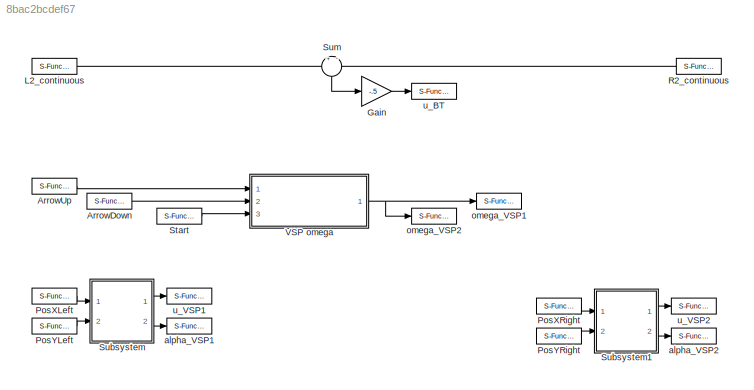
MODEL slx_8bac2bcdef67
KIND model
CONFIG AbsTol = auto
CONFIG EnableMultiTasking = on
CONFIG FixedStep = 0.01
CONFIG MaxStep = auto
CONFIG MinStep = auto
CONFIG RelTol = 1e-3
CONFIG SampleTimeConstraint = Unconstrained
CONFIG Solver = FixedStepDiscrete
CONFIG SolverName = FixedStepDiscrete
CONFIG StartTime = 0.0
CONFIG StopTime = inf
BLOCK [S-Function] ArrowDown
  CopyFcn = NIVeriStand_MDL_functions('', 'IO_copy');
  DeleteFcn = NIVeriStand_MDL_functions('', 'IO_delete');
  EnableBusSupport = off
  FunctionName = NIVeriStandIO
  MoveFcn = set_param(gcb, 'Mask', 'on');
  Parameters = width dtype portnum stime stype btype
  Ports = [0, 1]
  Priority = 6
  SFcnIsStateOwnerBlock = off
  SFunctionDeploymentMode = off
BLOCK [S-Function] ArrowUp
  CopyFcn = NIVeriStand_MDL_functions('', 'IO_copy');
  DeleteFcn = NIVeriStand_MDL_functions('', 'IO_delete');
  EnableBusSupport = off
  FunctionName = NIVeriStandIO
  MoveFcn = set_param(gcb, 'Mask', 'on');
  Parameters = width dtype portnum stime stype btype
  Ports = [0, 1]
  Priority = 5
  SFcnIsStateOwnerBlock = off
  SFunctionDeploymentMode = off
BLOCK [Gain] Gain
  Gain = -.5
  OutDataTypeStr = Inherit: Inherit via internal rule
  ParamDataTypeStr = Inherit: Inherit via internal rule
  SaturateOnIntegerOverflow = off
BLOCK [S-Function] L2_continuous
  CopyFcn = NIVeriStand_MDL_functions('', 'IO_copy');
  DeleteFcn = NIVeriStand_MDL_functions('', 'IO_delete');
  EnableBusSupport = off
  FunctionName = NIVeriStandIO
  MoveFcn = set_param(gcb, 'Mask', 'on');
  Parameters = width dtype portnum stime stype btype
  Ports = [0, 1]
  Priority = 8
  SFcnIsStateOwnerBlock = off
  SFunctionDeploymentMode = off
BLOCK [S-Function] PosXLeft
  CopyFcn = NIVeriStand_MDL_functions('', 'IO_copy');
  DeleteFcn = NIVeriStand_MDL_functions('', 'IO_delete');
  EnableBusSupport = off
  FunctionName = NIVeriStandIO
  MoveFcn = set_param(gcb, 'Mask', 'on');
  Parameters = width dtype portnum stime stype btype
  Ports = [0, 1]
  Priority = 1
  SFcnIsStateOwnerBlock = off
  SFunctionDeploymentMode = off
BLOCK [S-Function] PosXRight
  CopyFcn = NIVeriStand_MDL_functions('', 'IO_copy');
  DeleteFcn = NIVeriStand_MDL_functions('', 'IO_delete');
  EnableBusSupport = off
  FunctionName = NIVeriStandIO
  MoveFcn = set_param(gcb, 'Mask', 'on');
  Parameters = width dtype portnum stime stype btype
  Ports = [0, 1]
  Priority = 3
  SFcnIsStateOwnerBlock = off
  SFunctionDeploymentMode = off
BLOCK [S-Function] PosYLeft
  CopyFcn = NIVeriStand_MDL_functions('', 'IO_copy');
  DeleteFcn = NIVeriStand_MDL_functions('', 'IO_delete');
  EnableBusSupport = off
  FunctionName = NIVeriStandIO
  MoveFcn = set_param(gcb, 'Mask', 'on');
  Parameters = width dtype portnum stime stype btype
  Ports = [0, 1]
  Priority = 2
  SFcnIsStateOwnerBlock = off
  SFunctionDeploymentMode = off
BLOCK [S-Function] PosYRight
  CopyFcn = NIVeriStand_MDL_functions('', 'IO_copy');
  DeleteFcn = NIVeriStand_MDL_functions('', 'IO_delete');
  EnableBusSupport = off
  FunctionName = NIVeriStandIO
  MoveFcn = set_param(gcb, 'Mask', 'on');
  Parameters = width dtype portnum stime stype btype
  Ports = [0, 1]
  Priority = 7
  SFcnIsStateOwnerBlock = off
  SFunctionDeploymentMode = off
BLOCK [S-Function] R2_continuous
  CopyFcn = NIVeriStand_MDL_functions('', 'IO_copy');
  DeleteFcn = NIVeriStand_MDL_functions('', 'IO_delete');
  EnableBusSupport = off
  FunctionName = NIVeriStandIO
  MoveFcn = set_param(gcb, 'Mask', 'on');
  Parameters = width dtype portnum stime stype btype
  Ports = [0, 1]
  Priority = 9
  SFcnIsStateOwnerBlock = off
  SFunctionDeploymentMode = off
BLOCK [S-Function] Start
  CopyFcn = NIVeriStand_MDL_functions('', 'IO_copy');
  DeleteFcn = NIVeriStand_MDL_functions('', 'IO_delete');
  EnableBusSupport = off
  FunctionName = NIVeriStandIO
  MoveFcn = set_param(gcb, 'Mask', 'on');
  Parameters = width dtype portnum stime stype btype
  Ports = [0, 1]
  Priority = 4
  SFcnIsStateOwnerBlock = off
  SFunctionDeploymentMode = off
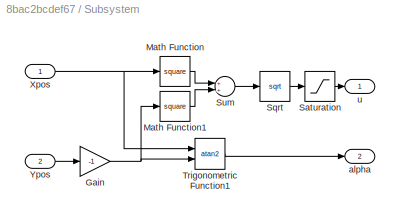
BLOCK [SubSystem] Subsystem
  Ports = [2, 2]
  RequestExecContextInheritance = off
  Variant = off
BLOCK [Gain] Subsystem/Gain
  Gain = -1
  OutDataTypeStr = Inherit: Inherit via internal rule
  ParamDataTypeStr = Inherit: Inherit via internal rule
  SaturateOnIntegerOverflow = off
BLOCK [Math] Subsystem/Math Function
  Operator = square
  Ports = [1, 1]
BLOCK [Math] Subsystem/Math Function1
  Operator = square
  Ports = [1, 1]
BLOCK [Saturate] Subsystem/Saturation
  InputPortMap = u0
  LowerLimit = -1
  Ports = [1, 1]
  UpperLimit = 1
BLOCK [Sqrt] Subsystem/Sqrt
BLOCK [Sum] Subsystem/Sum
  InputSameDT = off
  OutDataTypeStr = Inherit: Inherit via internal rule
  Ports = [2, 1]
  SaturateOnIntegerOverflow = off
BLOCK [Trigonometry] Subsystem/Trigonometric Function1
  Operator = atan2
  Ports = [2, 1]
BLOCK [Inport] Subsystem/Xpos
  IconDisplay = Port number
BLOCK [Inport] Subsystem/Ypos
  IconDisplay = Port number
  Port = 2
BLOCK [Outport] Subsystem/alpha
  IconDisplay = Port number
  Port = 2
BLOCK [Outport] Subsystem/u
  IconDisplay = Port number
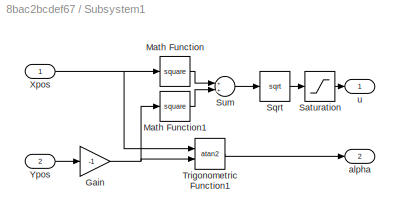
BLOCK [SubSystem] Subsystem1
  Ports = [2, 2]
  RequestExecContextInheritance = off
  Variant = off
BLOCK [Gain] Subsystem1/Gain
  Gain = -1
  OutDataTypeStr = Inherit: Inherit via internal rule
  ParamDataTypeStr = Inherit: Inherit via internal rule
  SaturateOnIntegerOverflow = off
BLOCK [Math] Subsystem1/Math Function
  Operator = square
  Ports = [1, 1]
BLOCK [Math] Subsystem1/Math Function1
  Operator = square
  Ports = [1, 1]
BLOCK [Saturate] Subsystem1/Saturation
  InputPortMap = u0
  LowerLimit = -1
  Ports = [1, 1]
  UpperLimit = 1
BLOCK [Sqrt] Subsystem1/Sqrt
BLOCK [Sum] Subsystem1/Sum
  InputSameDT = off
  OutDataTypeStr = Inherit: Inherit via internal rule
  Ports = [2, 1]
  SaturateOnIntegerOverflow = off
BLOCK [Trigonometry] Subsystem1/Trigonometric Function1
  Operator = atan2
  Ports = [2, 1]
BLOCK [Inport] Subsystem1/Xpos
  IconDisplay = Port number
BLOCK [Inport] Subsystem1/Ypos
  IconDisplay = Port number
  Port = 2
BLOCK [Outport] Subsystem1/alpha
  IconDisplay = Port number
  Port = 2
BLOCK [Outport] Subsystem1/u
  IconDisplay = Port number
BLOCK [Sum] Sum
  IconShape = round
  InputSameDT = off
  Inputs = +|-
  OutDataTypeStr = Inherit: Inherit via internal rule
  Ports = [2, 1]
  SaturateOnIntegerOverflow = off
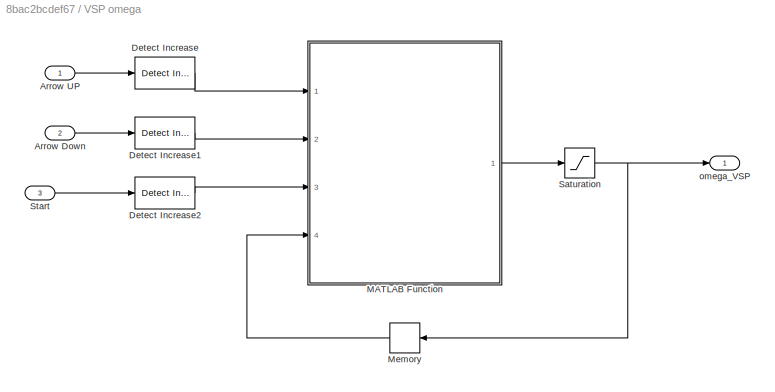
BLOCK [SubSystem] VSP omega
  Ports = [3, 1]
  RequestExecContextInheritance = off
  Variant = off
BLOCK [Inport] VSP omega/Arrow Down
  IconDisplay = Port number
  Port = 2
BLOCK [Inport] VSP omega/Arrow UP
  IconDisplay = Port number
BLOCK [Reference] VSP omega/Detect Increase  REF=simulink/Logic and Bit
Operations/Detect
Increase
  Ports = [1, 1]
  SourceBlock = simulink/Logic and Bit\nOperations/Detect\nIncrease
  SourceType = Detect Increase
BLOCK [Reference] VSP omega/Detect Increase1  REF=simulink/Logic and Bit
Operations/Detect
Increase
  Ports = [1, 1]
  SourceBlock = simulink/Logic and Bit\nOperations/Detect\nIncrease
  SourceType = Detect Increase
BLOCK [Reference] VSP omega/Detect Increase2  REF=simulink/Logic and Bit
Operations/Detect
Increase
  Ports = [1, 1]
  SourceBlock = simulink/Logic and Bit\nOperations/Detect\nIncrease
  SourceType = Detect Increase
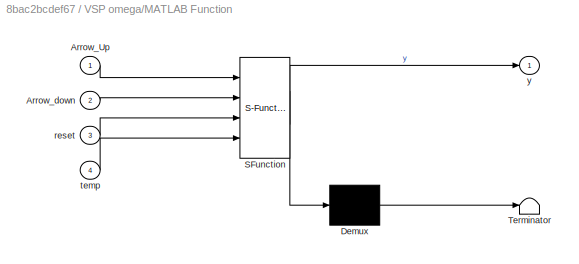
BLOCK [SubSystem] VSP omega/MATLAB Function
  ErrorFcn = Stateflow.Translate.translate
  PermitHierarchicalResolution = ExplicitOnly
  Ports = [4, 1]
  RequestExecContextInheritance = off
  SFBlockType = MATLAB Function
  TreatAsAtomicUnit = on
  Variant = off
BLOCK [Demux] VSP omega/MATLAB Function/ Demux 
  Outputs = 1
  Ports = [1, 1]
BLOCK [S-Function] VSP omega/MATLAB Function/ SFunction 
  EnableBusSupport = on
  FunctionName = sf_sfun
  PortCounts = [4 2]
  Ports = [4, 2]
  SFcnIsStateOwnerBlock = off
  SFunctionDeploymentMode = off
  Tag = Stateflow S-Function ctrl_sixaxis2thruster 2
BLOCK [Terminator] VSP omega/MATLAB Function/ Terminator 
BLOCK [Inport] VSP omega/MATLAB Function/Arrow_Up
  IconDisplay = Port number
BLOCK [Inport] VSP omega/MATLAB Function/Arrow_down
  IconDisplay = Port number
  Port = 2
BLOCK [Inport] VSP omega/MATLAB Function/reset
  IconDisplay = Port number
  Port = 3
BLOCK [Inport] VSP omega/MATLAB Function/temp
  IconDisplay = Port number
  Port = 4
BLOCK [Outport] VSP omega/MATLAB Function/y
  IconDisplay = Port number
BLOCK [Memory] VSP omega/Memory
BLOCK [Saturate] VSP omega/Saturation
  InputPortMap = u0
  LowerLimit = -0.8
  Ports = [1, 1]
  UpperLimit = 0.8
BLOCK [Inport] VSP omega/Start
  IconDisplay = Port number
  Port = 3
BLOCK [Outport] VSP omega/omega_VSP
  IconDisplay = Port number
BLOCK [S-Function] alpha_VSP1
  CopyFcn = NIVeriStand_MDL_functions('', 'IO_copy');
  DeleteFcn = NIVeriStand_MDL_functions('', 'IO_delete');
  EnableBusSupport = off
  FunctionName = NIVeriStandIO
  MoveFcn = set_param(gcb, 'Mask', 'on');
  Parameters = width dtype portnum stime stype btype
  Ports = [1]
  Priority = 3
  SFcnIsStateOwnerBlock = off
  SFunctionDeploymentMode = off
BLOCK [S-Function] alpha_VSP2
  CopyFcn = NIVeriStand_MDL_functions('', 'IO_copy');
  DeleteFcn = NIVeriStand_MDL_functions('', 'IO_delete');
  EnableBusSupport = off
  FunctionName = NIVeriStandIO
  MoveFcn = set_param(gcb, 'Mask', 'on');
  Parameters = width dtype portnum stime stype btype
  Ports = [1]
  Priority = 2
  SFcnIsStateOwnerBlock = off
  SFunctionDeploymentMode = off
BLOCK [S-Function] omega_VSP1
  CopyFcn = NIVeriStand_MDL_functions('', 'IO_copy');
  DeleteFcn = NIVeriStand_MDL_functions('', 'IO_delete');
  EnableBusSupport = off
  FunctionName = NIVeriStandIO
  MoveFcn = set_param(gcb, 'Mask', 'on');
  Parameters = width dtype portnum stime stype btype
  Ports = [1]
  Priority = 6
  SFcnIsStateOwnerBlock = off
  SFunctionDeploymentMode = off
BLOCK [S-Function] omega_VSP2
  CopyFcn = NIVeriStand_MDL_functions('', 'IO_copy');
  DeleteFcn = NIVeriStand_MDL_functions('', 'IO_delete');
  EnableBusSupport = off
  FunctionName = NIVeriStandIO
  MoveFcn = set_param(gcb, 'Mask', 'on');
  Parameters = width dtype portnum stime stype btype
  Ports = [1]
  Priority = 7
  SFcnIsStateOwnerBlock = off
  SFunctionDeploymentMode = off
BLOCK [S-Function] u_BT
  CopyFcn = NIVeriStand_MDL_functions('', 'IO_copy');
  DeleteFcn = NIVeriStand_MDL_functions('', 'IO_delete');
  EnableBusSupport = off
  FunctionName = NIVeriStandIO
  MoveFcn = set_param(gcb, 'Mask', 'on');
  Parameters = width dtype portnum stime stype btype
  Ports = [1]
  Priority = 5
  SFcnIsStateOwnerBlock = off
  SFunctionDeploymentMode = off
BLOCK [S-Function] u_VSP1
  CopyFcn = NIVeriStand_MDL_functions('', 'IO_copy');
  DeleteFcn = NIVeriStand_MDL_functions('', 'IO_delete');
  EnableBusSupport = off
  FunctionName = NIVeriStandIO
  MoveFcn = set_param(gcb, 'Mask', 'on');
  Parameters = width dtype portnum stime stype btype
  Ports = [1]
  Priority = 1
  SFcnIsStateOwnerBlock = off
  SFunctionDeploymentMode = off
BLOCK [S-Function] u_VSP2
  CopyFcn = NIVeriStand_MDL_functions('', 'IO_copy');
  DeleteFcn = NIVeriStand_MDL_functions('', 'IO_delete');
  EnableBusSupport = off
  FunctionName = NIVeriStandIO
  MoveFcn = set_param(gcb, 'Mask', 'on');
  Parameters = width dtype portnum stime stype btype
  Ports = [1]
  Priority = 4
  SFcnIsStateOwnerBlock = off
  SFunctionDeploymentMode = off
LINE ArrowDown:1 -> VSP omega:2
LINE ArrowUp:1 -> VSP omega:1
LINE Gain:1 -> u_BT:1
LINE L2_continuous:1 -> Sum:1
LINE PosXLeft:1 -> Subsystem:1
LINE PosXRight:1 -> Subsystem1:1
LINE PosYLeft:1 -> Subsystem:2
LINE PosYRight:1 -> Subsystem1:2
LINE R2_continuous:1 -> Sum:2
LINE Start:1 -> VSP omega:3
NET Subsystem/Gain:1 -> Subsystem/Math Function1:1, Subsystem/Trigonometric Function1:2
LINE Subsystem/Math Function1:1 -> Subsystem/Sum:2
LINE Subsystem/Math Function:1 -> Subsystem/Sum:1
LINE Subsystem/Saturation:1 -> Subsystem/u:1
LINE Subsystem/Sqrt:1 -> Subsystem/Saturation:1
LINE Subsystem/Sum:1 -> Subsystem/Sqrt:1
LINE Subsystem/Trigonometric Function1:1 -> Subsystem/alpha:1
NET Subsystem/Xpos:1 -> Subsystem/Math Function:1, Subsystem/Trigonometric Function1:1
LINE Subsystem/Ypos:1 -> Subsystem/Gain:1
NET Subsystem1/Gain:1 -> Subsystem1/Math Function1:1, Subsystem1/Trigonometric Function1:2
LINE Subsystem1/Math Function1:1 -> Subsystem1/Sum:2
LINE Subsystem1/Math Function:1 -> Subsystem1/Sum:1
LINE Subsystem1/Saturation:1 -> Subsystem1/u:1
LINE Subsystem1/Sqrt:1 -> Subsystem1/Saturation:1
LINE Subsystem1/Sum:1 -> Subsystem1/Sqrt:1
LINE Subsystem1/Trigonometric Function1:1 -> Subsystem1/alpha:1
NET Subsystem1/Xpos:1 -> Subsystem1/Math Function:1, Subsystem1/Trigonometric Function1:1
LINE Subsystem1/Ypos:1 -> Subsystem1/Gain:1
LINE Subsystem1:1 -> u_VSP2:1
LINE Subsystem1:2 -> alpha_VSP2:1
LINE Subsystem:1 -> u_VSP1:1
LINE Subsystem:2 -> alpha_VSP1:1
LINE Sum:1 -> Gain:1
LINE VSP omega/Arrow Down:1 -> VSP omega/Detect Increase1:1
LINE VSP omega/Arrow UP:1 -> VSP omega/Detect Increase:1
LINE VSP omega/Detect Increase1:1 -> VSP omega/MATLAB Function:2
LINE VSP omega/Detect Increase2:1 -> VSP omega/MATLAB Function:3
LINE VSP omega/Detect Increase:1 -> VSP omega/MATLAB Function:1
LINE VSP omega/MATLAB Function:1 -> VSP omega/Saturation:1
LINE VSP omega/Memory:1 -> VSP omega/MATLAB Function:4
NET VSP omega/Saturation:1 -> VSP omega/Memory:1, VSP omega/omega_VSP:1
LINE VSP omega/Start:1 -> VSP omega/Detect Increase2:1
NET VSP omega:1 -> omega_VSP1:1, omega_VSP2:1
note: NET lines group one-source signal fan-out (src -> all destinations, sorted); 1:1 wires keep LINE
CHART VSP omega/MATLAB Function states=1 transitions=1
  STATE_LABEL 'eML_blk_kernel()'
  STATE_LABEL 'SCRIPT:\nfunction y = fcn(Arrow_Up,Arrow_down,reset,temp)\n%#codegen\npersistent signal;\n\nsignal = temp;\n\nif Arrow_Up ~= 0\n    signal = signal + 0.1;\nend\n\nif Arrow_down ~= 0\n    signal = signal - 0.1;\nend\n \nif reset ~= 0\n    signal = 0;\nend\n\n\n\ny = signal;'
